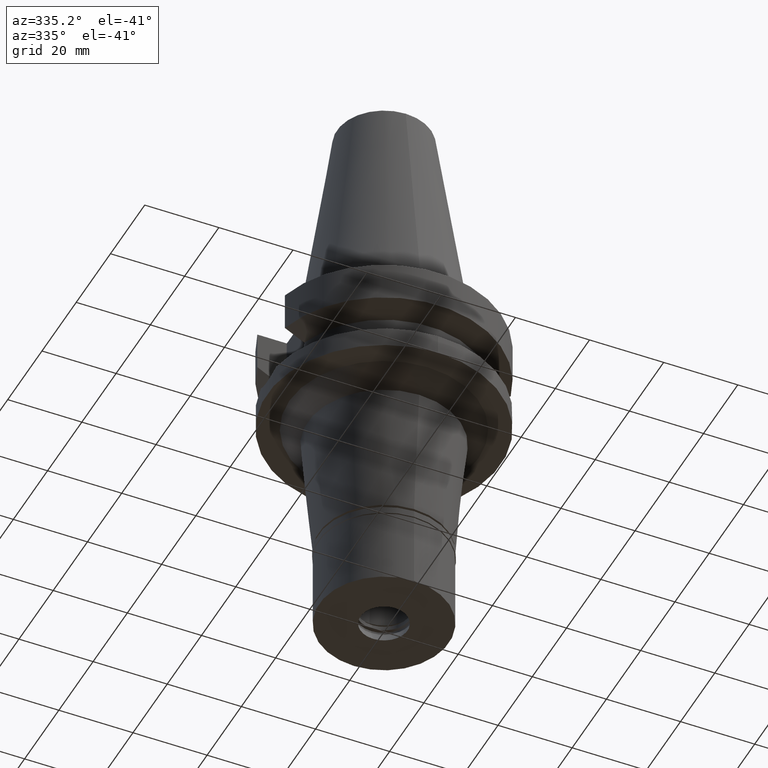
[diagram: clean part render]
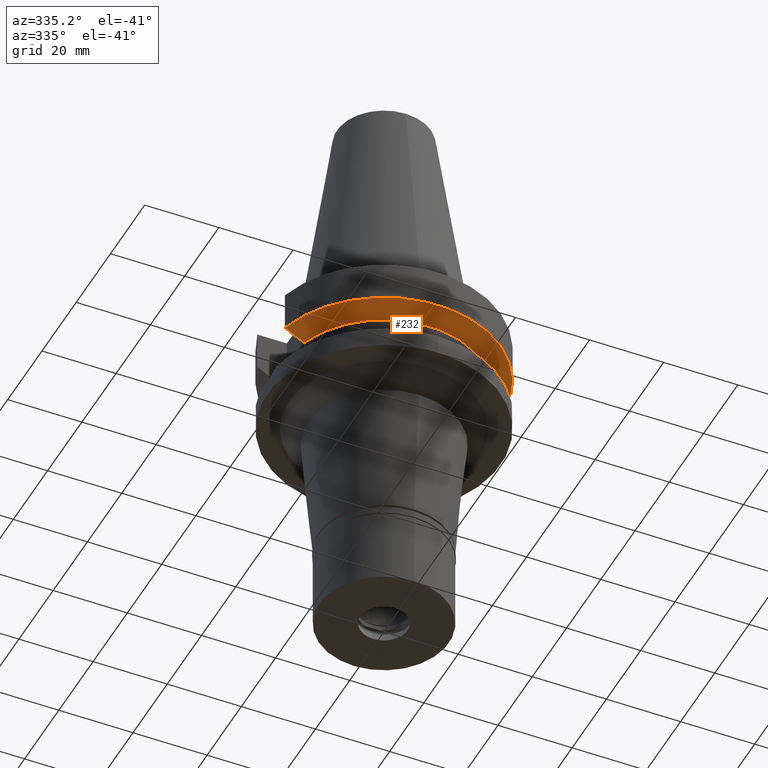
[diagram: same view with one face highlighted and labeled with its STEP entity id]
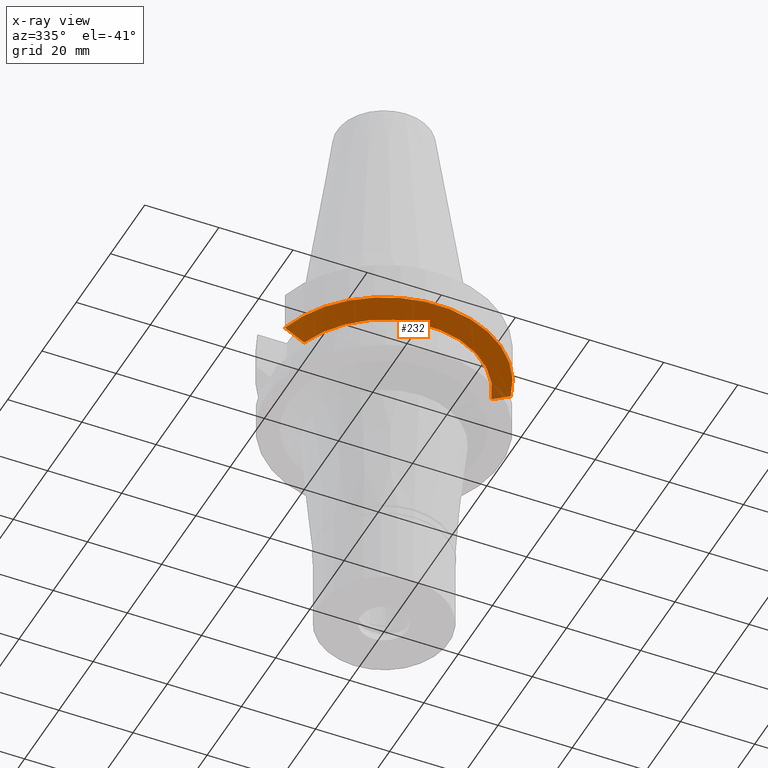
[diagram: x-ray of the same camera — body ghosted, the highlighted face saturated]
A machine part, auxiliary view. The second image highlights one B-rep face of the part: STEP entity #232.
The next image is the same camera in x-ray: the body ghosted, the highlighted face saturated — about 2% of this face is hidden behind the body in this view.
In plain terms, the highlighted conical surface has half-angle 60 deg.
Its self-contained STEP definition (entity closure, byte-faithful):
#82 = VERTEX_POINT ( 'NONE', #1217 ) ;
#126 = CARTESIAN_POINT ( 'NONE',  ( 0.0000000000000000000, 1.065333950388000029E-14, -13.00888132564000088 ) ) ;
#144 = DIRECTION ( 'NONE',  ( 0.0000000000000000000, 0.0000000000000000000, -1.000000000000000000 ) ) ;
#146 = FACE_OUTER_BOUND ( 'NONE', #2028, .T. ) ;
#215 = AXIS2_PLACEMENT_3D ( 'NONE', #126, #2106, #1866 ) ;
#232 = ADVANCED_FACE ( 'NONE', ( #146 ), #1500, .T. ) ;
#246 = ORIENTED_EDGE ( 'NONE', *, *, #493, .T. ) ;
#493 = EDGE_CURVE ( 'NONE', #1586, #858, #2637, .T. ) ;
#604 = CARTESIAN_POINT ( 'NONE',  ( 0.0000000000000000000, 1.065333950388000029E-14, -14.45225699861000024 ) ) ;
#728 = CARTESIAN_POINT ( 'NONE',  ( -25.24772413216999922, -8.049995412768000236, -14.45229205104999970 ) ) ;
#858 = VERTEX_POINT ( 'NONE', #871 ) ;
#871 = CARTESIAN_POINT ( 'NONE',  ( -25.24772413216999922, -8.049995412768000236, -14.45229205104999970 ) ) ;
#967 = CARTESIAN_POINT ( 'NONE',  ( 0.0000000000000000000, 1.065333950388000029E-14, -11.56550565266999975 ) ) ;
#1045 = B_SPLINE_CURVE_WITH_KNOTS ( 'NONE', 3,
 ( #1597, #1115, #3082, #2105 ),
 .UNSPECIFIED., .F., .F.,
 ( 4, 4 ),
 ( 0.0000000000000000000, 1.000000000000000000 ),
 .UNSPECIFIED. ) ;
#1115 = CARTESIAN_POINT ( 'NONE',  ( 26.83757719471653402, -8.050003169949272674, -13.57772971230303050 ) ) ;
#1131 = ORIENTED_EDGE ( 'NONE', *, *, #2778, .F. ) ;
#1217 = CARTESIAN_POINT ( 'NONE',  ( 25.24772266958000344, -8.050000000000000711, -14.45225699861000024 ) ) ;
#1423 = CARTESIAN_POINT ( 'NONE',  ( -28.57292325612248263, -8.049998554924691518, -12.61549607476626100 ) ) ;
#1500 = CONICAL_SURFACE ( 'NONE', #215, 29.00000000000000000, 1.047197551196400456 ) ;
#1513 = CIRCLE ( 'NONE', #1919, 26.50000000000000711 ) ;
#1586 = VERTEX_POINT ( 'NONE', #2677 ) ;
#1597 = CARTESIAN_POINT ( 'NONE',  ( 25.24772266958000344, -8.050000000000000711, -14.45225699861000024 ) ) ;
#1866 = DIRECTION ( 'NONE',  ( 0.0000000000000000000, 1.000000000000000000, 0.0000000000000000000 ) ) ;
#1919 = AXIS2_PLACEMENT_3D ( 'NONE', #604, #144, #2052 ) ;
#1956 = VERTEX_POINT ( 'NONE', #1998 ) ;
#1998 = CARTESIAN_POINT ( 'NONE',  ( 30.45402272279000044, -8.049999999999000622, -11.56550565266999975 ) ) ;
#2014 = AXIS2_PLACEMENT_3D ( 'NONE', #967, #2396, #3144 ) ;
#2028 = EDGE_LOOP ( 'NONE', ( #246, #1131, #2457, #2965 ) ) ;
#2052 = DIRECTION ( 'NONE',  ( 0.9527442516822307583, -0.3037735849057093818, 0.0000000000000000000 ) ) ;
#2105 = CARTESIAN_POINT ( 'NONE',  ( 30.45402272279000044, -8.049999999999000622, -11.56550565266999975 ) ) ;
#2106 = DIRECTION ( 'NONE',  ( 0.0000000000000000000, 0.0000000000000000000, 1.000000000000000000 ) ) ;
#2396 = DIRECTION ( 'NONE',  ( 0.0000000000000000000, 0.0000000000000000000, 1.000000000000000000 ) ) ;
#2404 = EDGE_CURVE ( 'NONE', #1586, #1956, #2475, .T. ) ;
#2457 = ORIENTED_EDGE ( 'NONE', *, *, #2844, .T. ) ;
#2475 = CIRCLE ( 'NONE', #2014, 31.50000000000000000 ) ;
#2637 = B_SPLINE_CURVE_WITH_KNOTS ( 'NONE', 3,
 ( #2643, #1423, #2917, #728 ),
 .UNSPECIFIED., .F., .F.,
 ( 4, 4 ),
 ( 0.0000000000000000000, 1.000000000000000000 ),
 .UNSPECIFIED. ) ;
#2643 = CARTESIAN_POINT ( 'NONE',  ( -30.45402291389999760, -8.049999276991000485, -11.56551216465999943 ) ) ;
#2677 = CARTESIAN_POINT ( 'NONE',  ( -30.45402291389999760, -8.049999276991000485, -11.56551216465999943 ) ) ;
#2778 = EDGE_CURVE ( 'NONE', #82, #858, #1513, .T. ) ;
#2844 = EDGE_CURVE ( 'NONE', #82, #1956, #1045, .T. ) ;
#2917 = CARTESIAN_POINT ( 'NONE',  ( -26.83754612425921593, -8.049990815373908148, -13.57774890178659177 ) ) ;
#2965 = ORIENTED_EDGE ( 'NONE', *, *, #2404, .F. ) ;
#3082 = CARTESIAN_POINT ( 'NONE',  ( 28.57294941119981146, -8.050008287464155643, -12.61547996126434512 ) ) ;
#3144 = DIRECTION ( 'NONE',  ( 0.0000000000000000000, -1.000000000000000000, 0.0000000000000000000 ) ) ;